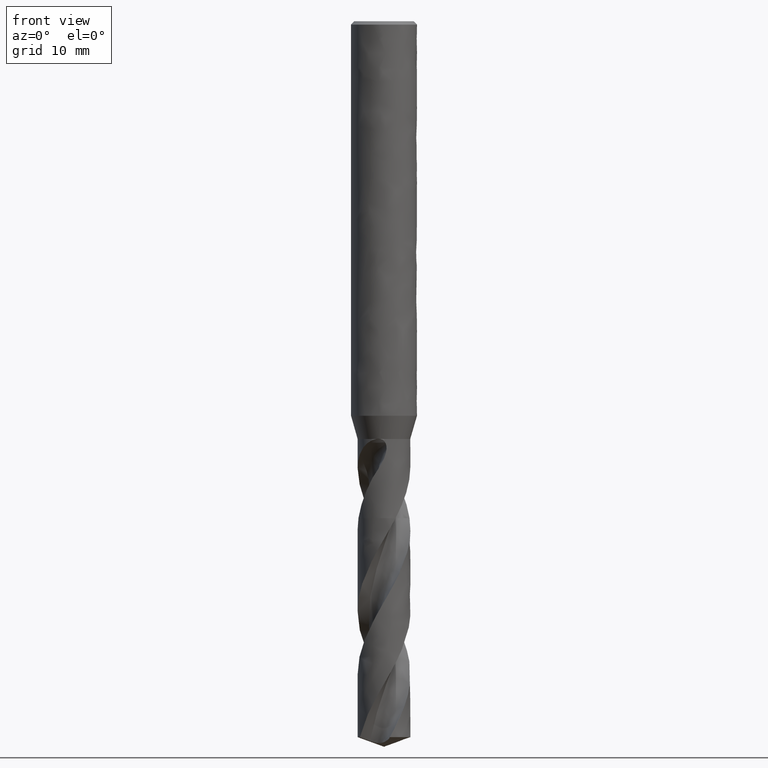
[diagram: clean part render]
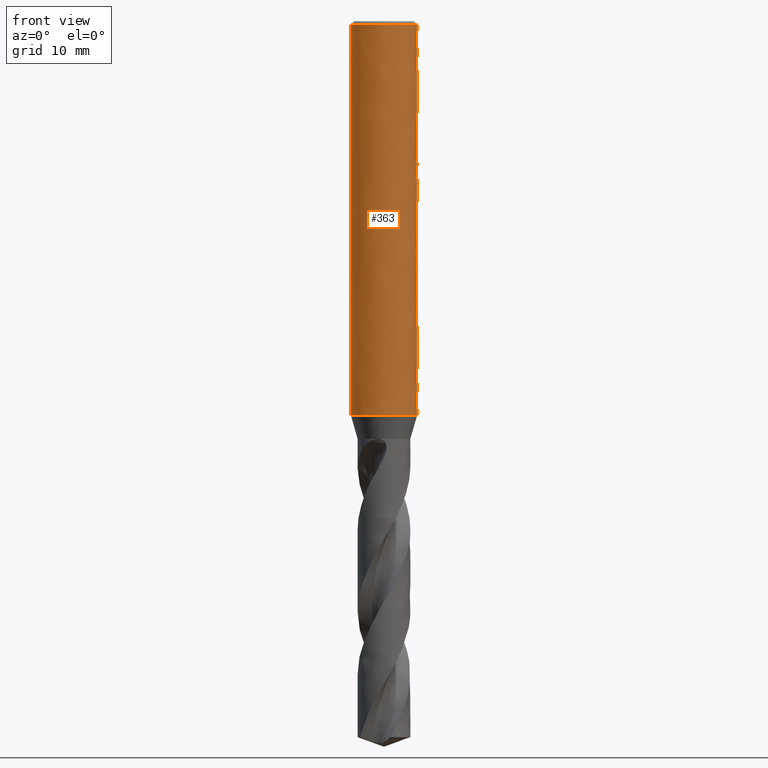
[diagram: same view with one face highlighted and labeled with its STEP entity id]
A machine part, front view. The second image highlights one B-rep face of the part: STEP entity #363.
In plain terms, the highlighted face is a freeform B-spline surface patch.
Its self-contained STEP definition (entity closure, byte-faithful):
#255 = VERTEX_POINT('', #256);
#256 = CARTESIAN_POINT('', (-3., 2.38126446860207E-15, -35.889));
#262 = EDGE_CURVE('', #255, #255, #263, .T.);
#263 = CIRCLE('', #264, 3.);
#264 = AXIS2_PLACEMENT_3D('', #265, #266, #267);
#265 = CARTESIAN_POINT('', (1.34562197099878E-31, 2.19756744872997E-15, -35.889));
#266 = DIRECTION('', (3.74939945665464E-33, 6.12323399573677E-17, -1.));
#267 = DIRECTION('', (-1., 6.12323399573677E-17, 0.));
#312 = VERTEX_POINT('', #313);
#313 = CARTESIAN_POINT('', (-3., 2.02066721859313E-16, -0.299999999999997));
#329 = EDGE_CURVE('', #312, #312, #330, .T.);
#330 = CIRCLE('', #331, 3.);
#331 = AXIS2_PLACEMENT_3D('', #332, #333, #334);
#332 = CARTESIAN_POINT('', (1.12481983699637E-33, 1.836970198721E-17, -0.299999999999997));
#333 = DIRECTION('', (3.74939945665464E-33, 6.12323399573677E-17, -1.));
#334 = DIRECTION('', (-1., 6.12323399573677E-17, 0.));
#363 = ADVANCED_FACE('', (#364, #375), #546, .T.);
#364 = FACE_OUTER_BOUND('', #365, .T.);
#365 = EDGE_LOOP('', (#366, #372, #373, #374));
#366 = ORIENTED_EDGE('', *, *, #367, .T.);
#367 = EDGE_CURVE('', #255, #312, #368, .T.);
#368 = LINE('', #369, #370);
#369 = CARTESIAN_POINT('', (-3., 2.38126446860207E-15, -35.889));
#370 = VECTOR('', #371, 35.589);
#371 = DIRECTION('', (0., -2.17919774674276E-15, 35.589));
#372 = ORIENTED_EDGE('', *, *, #329, .T.);
#373 = ORIENTED_EDGE('', *, *, #367, .F.);
#374 = ORIENTED_EDGE('', *, *, #262, .F.);
#375 = FACE_BOUND('', #376, .T.);
#376 = EDGE_LOOP('', (#377, #387, #465, #473));
#377 = ORIENTED_EDGE('', *, *, #378, .F.);
#378 = EDGE_CURVE('', #379, #381, #383, .T.);
#379 = VERTEX_POINT('', #380);
#380 = CARTESIAN_POINT('', (2.14242852856286, 2.1, -15.9));
#381 = VERTEX_POINT('', #382);
#382 = CARTESIAN_POINT('', (2.14242852856286, 2.1, -20.1));
#383 = LINE('', #384, #385);
#384 = CARTESIAN_POINT('', (2.14242852856286, 2.1, -15.9));
#385 = VECTOR('', #386, 4.2);
#386 = DIRECTION('', (0., 4.44089209850063E-16, -4.2));
#387 = ORIENTED_EDGE('', *, *, #388, .F.);
#388 = EDGE_CURVE('', #389, #379, #391, .T.);
#389 = VERTEX_POINT('', #390);
#390 = CARTESIAN_POINT('', (-2.14242852856286, 2.1, -15.9));
#391 = B_SPLINE_CURVE_WITH_KNOTS('', 3, (#392, #393, #394, #395, #396, #397, #398, #399, #400, #401, #402, #403, #404, #405, #406, #407, #408, #409, #410, #411, #412, #413, #414, #415, #416, #417, #418, #419, #420, #421, #422, #423, #424, #425, #426, #427, #428, #429, #430, #431, #432, #433, #434, #435, #436, #437, #438, #439, #440, #441, #442, #443, #444, #445, #446, #447, #448, #449, #450, #451, #452, #453, #454, #455, #456, #457, #458, #459, #460, #461, #462, #463, #464), .UNSPECIFIED., .F., .U., (4, 3, 3, 3, 3, 3, 3, 3, 3, 3, 3, 3, 3, 3, 3, 3, 3, 3, 3, 3, 3, 3, 3, 3, 4), (0., 0.226532141220109, 0.522486989651015, 0.818712617000362, 1.01613164123477, 1.21365653787484, 1.41130126070876, 1.60907935009336, 1.80700249001341, 2.00507870652317, 2.20331049885992, 2.40169339368014, 2.59896230886553, 2.79623122405091, 2.99461411887113, 3.19284591120788, 3.39092212771765, 3.58884526763769, 3.78662335702229, 3.98426807985621, 4.18179297649628, 4.37921200073069, 4.67543762808004, 4.97139247651095, 5.19792461773105), .UNSPECIFIED.);
#392 = CARTESIAN_POINT('', (-2.14242852856286, 2.1, -15.9));
#393 = CARTESIAN_POINT('', (-2.09966946167759, 2.14362297369035, -15.8556089394693));
#394 = CARTESIAN_POINT('', (-2.05511554936735, 2.1864112283916, -15.8120672951529));
#395 = CARTESIAN_POINT('', (-2.00876778330359, 2.22819478339795, -15.7695480406737));
#396 = CARTESIAN_POINT('', (-1.94821634893922, 2.28278326528933, -15.71399839793));
#397 = CARTESIAN_POINT('', (-1.88451279376244, 2.33573606973675, -15.6601132326456));
#398 = CARTESIAN_POINT('', (-1.81770907332823, 2.38661553768948, -15.6083379099064));
#399 = CARTESIAN_POINT('', (-1.75084423195188, 2.43754155695696, -15.5565152162052));
#400 = CARTESIAN_POINT('', (-1.6807436866328, 2.48648668451198, -15.5067082925553));
#401 = CARTESIAN_POINT('', (-1.60754910566601, 2.53294016369761, -15.4594368887067));
#402 = CARTESIAN_POINT('', (-1.5587687118729, 2.56389899941746, -15.4279329486004));
#403 = CARTESIAN_POINT('', (-1.5085561938224, 2.59378846644904, -15.3975172059771));
#404 = CARTESIAN_POINT('', (-1.45698599487322, 2.6224400490275, -15.3683611437249));
#405 = CARTESIAN_POINT('', (-1.40538813971894, 2.65110699695379, -15.3391894455812));
#406 = CARTESIAN_POINT('', (-1.35237136818211, 2.67856731294511, -15.311245625015));
#407 = CARTESIAN_POINT('', (-1.29804490816719, 2.7046403488045, -15.2847135109673));
#408 = CARTESIAN_POINT('', (-1.24368549163368, 2.7307292015695, -15.2581653015195));
#409 = CARTESIAN_POINT('', (-1.18794354651529, 2.75546251726231, -15.2329964966177));
#410 = CARTESIAN_POINT('', (-1.13097137564117, 2.77865142604832, -15.2093992916021));
#411 = CARTESIAN_POINT('', (-1.07396076113039, 2.80185598222798, -15.1857861636831));
#412 = CARTESIAN_POINT('', (-1.01563414958426, 2.82354738172838, -15.1637128351876));
#413 = CARTESIAN_POINT('', (-0.95619479969747, 2.84353503671602, -15.143373249704));
#414 = CARTESIAN_POINT('', (-0.89671185696602, 2.86353735065839, -15.1230187471597));
#415 = CARTESIAN_POINT('', (-0.836016614422423, 2.88186535336629, -15.1043680361057));
#416 = CARTESIAN_POINT('', (-0.774369168024391, 2.89833614192924, -15.087607239896));
#417 = CARTESIAN_POINT('', (-0.712674042608822, 2.91481966923584, -15.0708334806465));
#418 = CARTESIAN_POINT('', (-0.649913305064561, 2.92947198918526, -15.0559231715418));
#419 = CARTESIAN_POINT('', (-0.586405693294024, 2.94212990244693, -15.0430423854271));
#420 = CARTESIAN_POINT('', (-0.522848200475703, 2.95479775766609, -15.030151482303));
#421 = CARTESIAN_POINT('', (-0.458417641638557, 2.96549204170255, -15.0192688998049));
#422 = CARTESIAN_POINT('', (-0.393487032405312, 2.97408270821927, -15.010526974047));
#423 = CARTESIAN_POINT('', (-0.328506929716991, 2.98267992298454, -15.0017783847429));
#424 = CARTESIAN_POINT('', (-0.262890170542842, 2.98918754384691, -14.9951561816427));
#425 = CARTESIAN_POINT('', (-0.197052250671389, 2.99352140638837, -14.9907460110803));
#426 = CARTESIAN_POINT('', (-0.131584030526332, 2.99783093298788, -14.9863606049525));
#427 = CARTESIAN_POINT('', (-0.065756305061796, 3., -14.9841533463251));
#428 = CARTESIAN_POINT('', (9.18485099360515E-17, 3., -14.9841533463251));
#429 = CARTESIAN_POINT('', (0.0657563050617961, 3., -14.9841533463251));
#430 = CARTESIAN_POINT('', (0.131584030526332, 2.99783093298788, -14.9863606049525));
#431 = CARTESIAN_POINT('', (0.197052250671389, 2.99352140638837, -14.9907460110803));
#432 = CARTESIAN_POINT('', (0.262890170542842, 2.98918754384691, -14.9951561816427));
#433 = CARTESIAN_POINT('', (0.328506929716991, 2.98267992298454, -15.0017783847429));
#434 = CARTESIAN_POINT('', (0.393487032405312, 2.97408270821927, -15.010526974047));
#435 = CARTESIAN_POINT('', (0.458417641638558, 2.96549204170255, -15.0192688998049));
#436 = CARTESIAN_POINT('', (0.522848200475705, 2.95479775766609, -15.030151482303));
#437 = CARTESIAN_POINT('', (0.586405693294026, 2.94212990244693, -15.0430423854271));
#438 = CARTESIAN_POINT('', (0.649913305064562, 2.92947198918526, -15.0559231715418));
#439 = CARTESIAN_POINT('', (0.712674042608823, 2.91481966923584, -15.0708334806465));
#440 = CARTESIAN_POINT('', (0.774369168024392, 2.89833614192924, -15.087607239896));
#441 = CARTESIAN_POINT('', (0.836016614422423, 2.88186535336629, -15.1043680361057));
#442 = CARTESIAN_POINT('', (0.89671185696602, 2.86353735065839, -15.1230187471597));
#443 = CARTESIAN_POINT('', (0.956194799697469, 2.84353503671602, -15.143373249704));
#444 = CARTESIAN_POINT('', (1.01563414958426, 2.82354738172838, -15.1637128351876));
#445 = CARTESIAN_POINT('', (1.07396076113039, 2.80185598222798, -15.1857861636831));
#446 = CARTESIAN_POINT('', (1.13097137564117, 2.77865142604832, -15.2093992916021));
#447 = CARTESIAN_POINT('', (1.18794354651529, 2.75546251726231, -15.2329964966178));
#448 = CARTESIAN_POINT('', (1.24368549163368, 2.7307292015695, -15.2581653015195));
#449 = CARTESIAN_POINT('', (1.29804490816719, 2.7046403488045, -15.2847135109673));
#450 = CARTESIAN_POINT('', (1.35237136818211, 2.67856731294511, -15.311245625015));
#451 = CARTESIAN_POINT('', (1.40538813971895, 2.65110699695379, -15.3391894455812));
#452 = CARTESIAN_POINT('', (1.45698599487322, 2.6224400490275, -15.3683611437249));
#453 = CARTESIAN_POINT('', (1.5085561938224, 2.59378846644904, -15.3975172059771));
#454 = CARTESIAN_POINT('', (1.55876871187291, 2.56389899941746, -15.4279329486004));
#455 = CARTESIAN_POINT('', (1.60754910566601, 2.53294016369761, -15.4594368887067));
#456 = CARTESIAN_POINT('', (1.6807436866328, 2.48648668451198, -15.5067082925553));
#457 = CARTESIAN_POINT('', (1.75084423195188, 2.43754155695696, -15.5565152162052));
#458 = CARTESIAN_POINT('', (1.81770907332823, 2.38661553768947, -15.6083379099064));
#459 = CARTESIAN_POINT('', (1.88451279376245, 2.33573606973675, -15.6601132326456));
#460 = CARTESIAN_POINT('', (1.94821634893922, 2.28278326528933, -15.71399839793));
#461 = CARTESIAN_POINT('', (2.0087677833036, 2.22819478339795, -15.7695480406738));
#462 = CARTESIAN_POINT('', (2.05511554936736, 2.1864112283916, -15.8120672951529));
#463 = CARTESIAN_POINT('', (2.09966946167759, 2.14362297369034, -15.8556089394693));
#464 = CARTESIAN_POINT('', (2.14242852856286, 2.1, -15.9));
#465 = ORIENTED_EDGE('', *, *, #466, .T.);
#466 = EDGE_CURVE('', #389, #467, #469, .T.);
#467 = VERTEX_POINT('', #468);
#468 = CARTESIAN_POINT('', (-2.14242852856286, 2.1, -20.1));
#469 = LINE('', #470, #471);
#470 = CARTESIAN_POINT('', (-2.14242852856286, 2.1, -15.9));
#471 = VECTOR('', #472, 4.2);
#472 = DIRECTION('', (0., 0., -4.2));
#473 = ORIENTED_EDGE('', *, *, #474, .T.);
#474 = EDGE_CURVE('', #467, #381, #475, .T.);
#475 = B_SPLINE_CURVE_WITH_KNOTS('', 3, (#476, #477, #478, #479, #480, #481, #482, #483, #484, #485, #486, #487, #488, #489, #490, #491, #492, #493, #494, #495, #496, #497, #498, #499, #500, #501, #502, #503, #504, #505, #506, #507, #508, #509, #510, #511, #512, #513, #514, #515, #516, #517, #518, #519, #520, #521, #522, #523, #524, #525, #526, #527, #528, #529, #530, #531, #532, #533, #534, #535, #536, #537, #538, #539, #540, #541, #542, #543, #544, #545), .UNSPECIFIED., .F., .U., (4, 3, 3, 3, 3, 3, 3, 3, 3, 3, 3, 3, 3, 3, 3, 3, 3, 3, 3, 3, 3, 3, 3, 4), (0., 0.295660747419768, 0.591176839852673, 0.886518626925896, 1.18164841836716, 1.47652016794506, 1.67307726230278, 1.86952243409268, 2.06584587187348, 2.26204020012183, 2.39294997035299, 2.5987955185311, 2.79606443371649, 2.99444732853671, 3.19267912087346, 3.39075533738322, 3.58867847730327, 3.78645656668787, 3.98410128952179, 4.18162618616186, 4.37904521039627, 4.67527083774562, 4.97122568617653, 5.19775782739663), .UNSPECIFIED.);
#476 = CARTESIAN_POINT('', (-2.14242852856286, 2.1, -20.1));
#477 = CARTESIAN_POINT('', (-2.08662109388194, 2.15693497150777, -20.157937447925));
#478 = CARTESIAN_POINT('', (-2.02774367313634, 2.21245994000831, -20.2144400663657));
#479 = CARTESIAN_POINT('', (-1.96580397010841, 2.26618947820047, -20.269115641651));
#480 = CARTESIAN_POINT('', (-1.90389457170158, 2.31989272867703, -20.3237644663626));
#481 = CARTESIAN_POINT('', (-1.8388216153995, 2.37189080900499, -20.3766780973248));
#482 = CARTESIAN_POINT('', (-1.77065397516674, 2.42173171516323, -20.4273965719039));
#483 = CARTESIAN_POINT('', (-1.70252654250763, 2.47154322347377, -20.4780851310158));
#484 = CARTESIAN_POINT('', (-1.63117078258686, 2.51929762113425, -20.5266803591222));
#485 = CARTESIAN_POINT('', (-1.55675381487312, 2.56447217958794, -20.572650323779));
#486 = CARTESIAN_POINT('', (-1.48239026348173, 2.60961431185107, -20.6185872913044));
#487 = CARTESIAN_POINT('', (-1.40478985624159, 2.6522855246488, -20.6620098329141));
#488 = CARTESIAN_POINT('', (-1.32426732289553, 2.69189822569708, -20.7023200103564));
#489 = CARTESIAN_POINT('', (-1.24381519309784, 2.73147629203384, -20.7425949432603));
#490 = CARTESIAN_POINT('', (-1.16021288035591, 2.76811040114363, -20.7798740835253));
#491 = CARTESIAN_POINT('', (-1.07398043712975, 2.80117225829876, -20.8135180737918));
#492 = CARTESIAN_POINT('', (-1.01649918128153, 2.82321079737816, -20.8359446540893));
#493 = CARTESIAN_POINT('', (-0.957748596561569, 2.84370285567261, -20.856797524107));
#494 = CARTESIAN_POINT('', (-0.897945836518629, 2.86246279882885, -20.8758877809545));
#495 = CARTESIAN_POINT('', (-0.838177129067325, 2.88121205979111, -20.8949671675225));
#496 = CARTESIAN_POINT('', (-0.777257254947386, 2.89826163823775, -20.9123169445968));
#497 = CARTESIAN_POINT('', (-0.715458762567488, 2.91343761887321, -20.9277601346871));
#498 = CARTESIAN_POINT('', (-0.653698565749474, 2.92860419519017, -20.9431937548733));
#499 = CARTESIAN_POINT('', (-0.590947680355501, 2.94192632660259, -20.9567504542887));
#500 = CARTESIAN_POINT('', (-0.527533495262699, 2.9532538684265, -20.9682774445929));
#501 = CARTESIAN_POINT('', (-0.46416101367652, 2.96457396084119, -20.9797968543232));
#502 = CARTESIAN_POINT('', (-0.400001379736572, 2.97392352783086, -20.989311042813));
#503 = CARTESIAN_POINT('', (-0.335429955765133, 2.98118881400953, -20.9967042517405));
#504 = CARTESIAN_POINT('', (-0.292344967778633, 2.9860365430586, -21.0016373366599));
#505 = CARTESIAN_POINT('', (-0.249027925527355, 2.98996321515988, -21.0056331472199));
#506 = CARTESIAN_POINT('', (-0.20559941433194, 2.99294652154468, -21.0086689818526));
#507 = CARTESIAN_POINT('', (-0.13731141964832, 2.99763754145158, -21.0134425983904));
#508 = CARTESIAN_POINT('', (-0.0686151827260334, 3., -21.0158466536749));
#509 = CARTESIAN_POINT('', (3.42251758381152E-15, 3., -21.0158466536749));
#510 = CARTESIAN_POINT('', (0.0657563050618005, 3., -21.0158466536749));
#511 = CARTESIAN_POINT('', (0.131584030526337, 2.99783093298788, -21.0136393950475));
#512 = CARTESIAN_POINT('', (0.197052250671396, 2.99352140638837, -21.0092539889197));
#513 = CARTESIAN_POINT('', (0.262890170542848, 2.98918754384691, -21.0048438183574));
#514 = CARTESIAN_POINT('', (0.328506929716997, 2.98267992298454, -20.9982216152571));
#515 = CARTESIAN_POINT('', (0.393487032405319, 2.97408270821927, -20.989473025953));
#516 = CARTESIAN_POINT('', (0.458417641638564, 2.96549204170255, -20.9807311001951));
#517 = CARTESIAN_POINT('', (0.52284820047571, 2.95479775766609, -20.969848517697));
#518 = CARTESIAN_POINT('', (0.586405693294031, 2.94212990244693, -20.9569576145729));
#519 = CARTESIAN_POINT('', (0.649913305064567, 2.92947198918526, -20.9440768284582));
#520 = CARTESIAN_POINT('', (0.712674042608828, 2.91481966923584, -20.9291665193535));
#521 = CARTESIAN_POINT('', (0.774369168024397, 2.89833614192924, -20.912392760104));
#522 = CARTESIAN_POINT('', (0.836016614422428, 2.88186535336629, -20.8956319638943));
#523 = CARTESIAN_POINT('', (0.896711856966025, 2.86353735065839, -20.8769812528403));
#524 = CARTESIAN_POINT('', (0.956194799697475, 2.84353503671602, -20.856626750296));
#525 = CARTESIAN_POINT('', (1.01563414958426, 2.82354738172838, -20.8362871648124));
#526 = CARTESIAN_POINT('', (1.07396076113039, 2.80185598222798, -20.8142138363169));
#527 = CARTESIAN_POINT('', (1.13097137564118, 2.77865142604832, -20.7906007083979));
#528 = CARTESIAN_POINT('', (1.1879435465153, 2.75546251726231, -20.7670035033823));
#529 = CARTESIAN_POINT('', (1.24368549163369, 2.7307292015695, -20.7418346984805));
#530 = CARTESIAN_POINT('', (1.2980449081672, 2.70464034880449, -20.7152864890327));
#531 = CARTESIAN_POINT('', (1.35237136818211, 2.67856731294511, -20.688754374985));
#532 = CARTESIAN_POINT('', (1.40538813971895, 2.65110699695378, -20.6608105544189));
#533 = CARTESIAN_POINT('', (1.45698599487322, 2.6224400490275, -20.6316388562751));
#534 = CARTESIAN_POINT('', (1.50855619382241, 2.59378846644903, -20.6024827940229));
#535 = CARTESIAN_POINT('', (1.55876871187291, 2.56389899941746, -20.5720670513996));
#536 = CARTESIAN_POINT('', (1.60754910566601, 2.53294016369761, -20.5405631112933));
#537 = CARTESIAN_POINT('', (1.6807436866328, 2.48648668451198, -20.4932917074447));
#538 = CARTESIAN_POINT('', (1.75084423195188, 2.43754155695695, -20.4434847837948));
#539 = CARTESIAN_POINT('', (1.81770907332824, 2.38661553768947, -20.3916620900936));
#540 = CARTESIAN_POINT('', (1.88451279376245, 2.33573606973674, -20.3398867673544));
#541 = CARTESIAN_POINT('', (1.94821634893922, 2.28278326528933, -20.28600160207));
#542 = CARTESIAN_POINT('', (2.0087677833036, 2.22819478339795, -20.2304519593262));
#543 = CARTESIAN_POINT('', (2.05511554936736, 2.1864112283916, -20.1879327048471));
#544 = CARTESIAN_POINT('', (2.09966946167759, 2.14362297369034, -20.1443910605307));
#545 = CARTESIAN_POINT('', (2.14242852856286, 2.1, -20.1));
#546 = (
   BOUNDED_SURFACE ()
   B_SPLINE_SURFACE (1, 2, ((#547, #548, #549, #550, #551, #552, #553, #554, #555), (#556, #557, #558, #559, #560, #561, #562, #563, #564)), .UNSPECIFIED., .F., .T., .U.)
   B_SPLINE_SURFACE_WITH_KNOTS ((2, 2), (3, 2, 2, 2, 3), (0., 1.), (0., 4.71238898038469, 9.42477796076938, 14.1371669411541, 18.8495559215388), .UNSPECIFIED.)
   GEOMETRIC_REPRESENTATION_ITEM ()
   RATIONAL_B_SPLINE_SURFACE (((1., 0.707106781186548, 1., 0.707106781186548, 1., 0.707106781186548, 1., 0.707106781186548, 1.), (1., 0.707106781186548, 1., 0.707106781186548, 1., 0.707106781186548, 1., 0.707106781186548, 1.)))
   REPRESENTATION_ITEM ('')
   SURFACE ()
);
#547 = CARTESIAN_POINT('', (-3., 2.38126446860207E-15, -35.889));
#548 = CARTESIAN_POINT('', (-3., 3., -35.889));
#549 = CARTESIAN_POINT('', (1.23259516440783E-31, 3., -35.889));
#550 = CARTESIAN_POINT('', (3., 3., -35.889));
#551 = CARTESIAN_POINT('', (3., 2.38126446860207E-15, -35.889));
#552 = CARTESIAN_POINT('', (3., -3., -35.889));
#553 = CARTESIAN_POINT('', (3.67394039744206E-16, -3., -35.889));
#554 = CARTESIAN_POINT('', (-3., -3., -35.889));
#555 = CARTESIAN_POINT('', (-3., 2.38126446860207E-15, -35.889));
#556 = CARTESIAN_POINT('', (-3., 2.02066721859313E-16, -0.299999999999997));
#557 = CARTESIAN_POINT('', (-3., 3., -0.299999999999997));
#558 = CARTESIAN_POINT('', (0., 3., -0.299999999999997));
#559 = CARTESIAN_POINT('', (3., 3., -0.299999999999997));
#560 = CARTESIAN_POINT('', (3., 2.02066721859313E-16, -0.299999999999997));
#561 = CARTESIAN_POINT('', (3., -3., -0.299999999999997));
#562 = CARTESIAN_POINT('', (3.67394039744206E-16, -3., -0.299999999999997));
#563 = CARTESIAN_POINT('', (-3., -3., -0.299999999999997));
#564 = CARTESIAN_POINT('', (-3., 2.02066721859313E-16, -0.299999999999997));